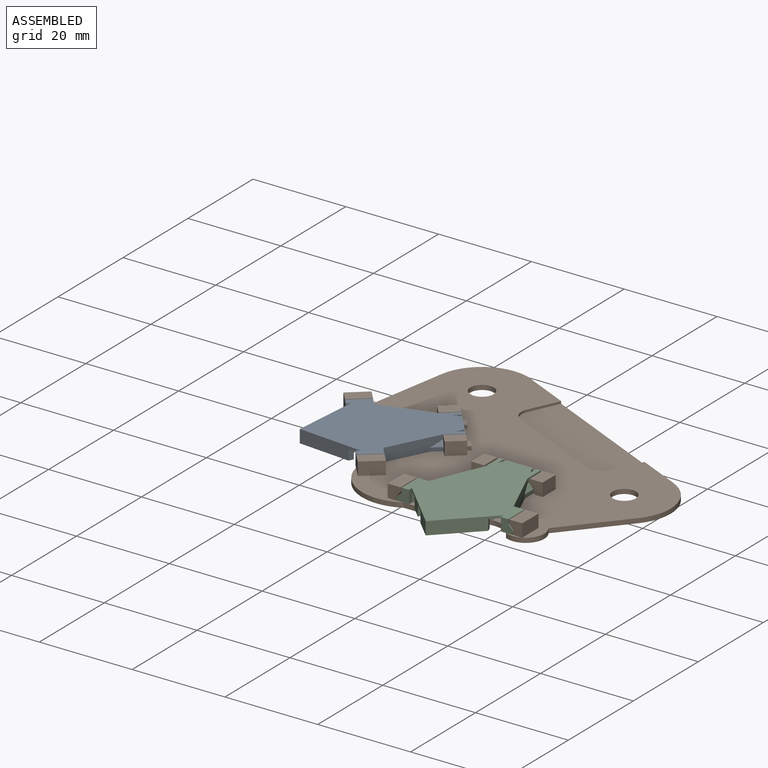
[diagram: assembled view]
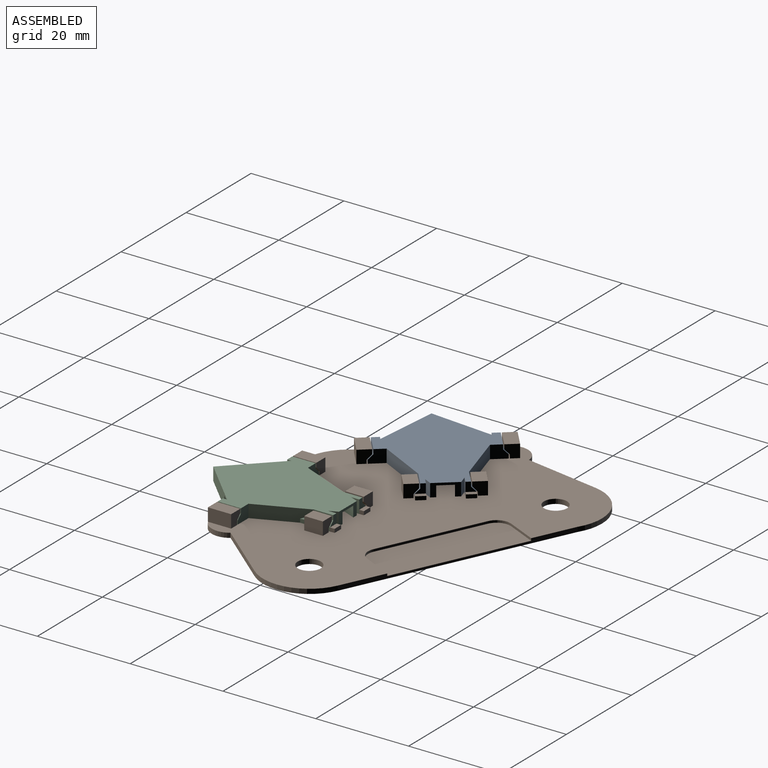
[diagram: assembled view, second angle]
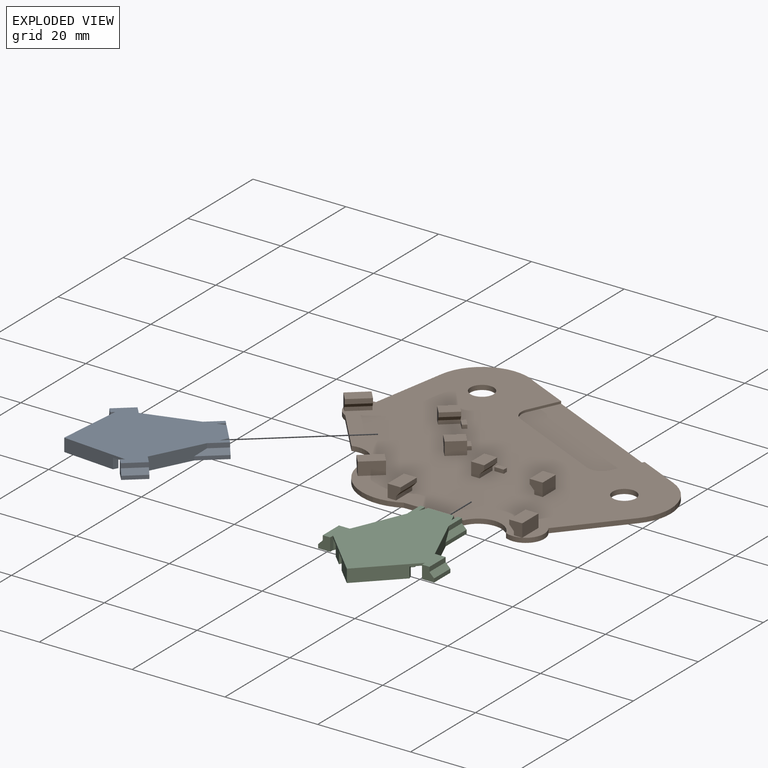
[diagram: exploded view]
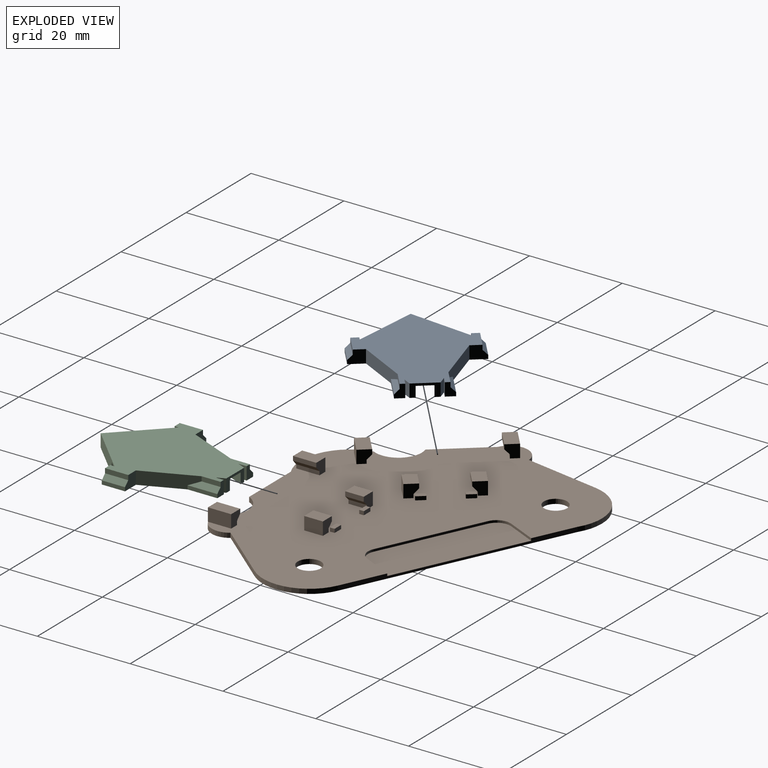
[diagram: exploded view, second angle]
ASSEMBLY  parts=3 mates=2
PART A: 50 faces, bbox 25x29x2.8 mm
  f0: plane 20x10.84mm, normal (0,0,1), area 41.4mm2, adj f2,f3,f4,f7,f8,f28,f31,f32
  f1: plane 2.8x1.76mm, normal (-0.92,0.39,0), area 5.3mm2, adj f8,f12,f13,f45
  f2: plane 10.9x4.66mm, normal (0.92,0.39,0), area 29.9mm2, adj f0,f13,f32,f40,f41,f43
  f3: plane 2.8x1.76mm, normal (0.92,0.39,0), area 5.3mm2, adj f0,f8,f13,f42
  f4: plane 19.15x8.18mm, normal (-0.92,-0.39,0), area 47.9mm2, adj f0,f5,f7,f8
  f5: plane 26.71x19.69mm, normal (0,0,1), area 212.4mm2, adj f4,f6,f7,f8,f14,f15,f16,f17
  f6: plane 9.9x9.9mm, normal (-0.71,-0.71,0), area 33mm2, adj f5,f7,f10,f12,f13,f24,f25,f39
  f7: plane 9.9x9.9mm, normal (0.71,-0.71,0), area 26.8mm2, adj f0,f4,f5,f6,f9,f10,f13,f20
  f8: plane 5.5x2.8mm, normal (0,1,0), area 7.8mm2, adj f0,f1,f3,f4,f5,f12,f13,f24
  f9: plane 17.95x6.69mm, normal (0,0,1), area 42.4mm2, adj f7,f21,f22,f23
  f10: plane 11.69x9.6mm, normal (0,0,1), area 24.3mm2, adj f6,f7,f17,f18,f19,f20,f25
  f11: plane 10.9x4.66mm, normal (-0.92,0.39,0), area 29.9mm2, adj f12,f13,f37,f46,f47,f48
  f12: plane 20x10.84mm, normal (0,0,1), area 41.4mm2, adj f1,f6,f8,f11,f24,f34,f36,f37
  f13: plane 29x23mm, normal (0,0,-1), area 379.6mm2, adj f1,f2,f3,f6,f7,f8,f11,f30
  f14: plane 11.29x4.82mm, normal (-0.92,0.39,0), area 28.2mm2, adj f5,f15,f26,f27
  f15: plane 15.99x2.3mm, normal (1,0,0), area 36.8mm2, adj f5,f14,f16,f27
  f16: plane 4.76x4.76mm, normal (-0.71,-0.71,0), area 15.5mm2, adj f5,f15,f26,f27
  f17: plane 6.21x6.21mm, normal (0.71,0.71,0), area 20.2mm2, adj f5,f10,f18,f25
  f18: cylinder r=1.5mm len=2.56mm, axis (0,0,1), area 8.1mm2, adj f5,f10,f17,f19
  f19: plane 5.81x2.3mm, normal (-1,0,0), area 13.4mm2, adj f5,f10,f18,f20
  f20: plane 5.85x2.5mm, normal (0.92,0.39,0), area 14.6mm2, adj f5,f7,f10,f19
  f21: plane 10.31x4.4mm, normal (-0.92,-0.39,0), area 25.8mm2, adj f5,f7,f9,f22
  f22: plane 7.64x2.3mm, normal (-1,0,0), area 17.6mm2, adj f5,f9,f21,f23
  f23: plane 15.66x6.69mm, normal (0.92,0.39,0), area 39.2mm2, adj f5,f7,f9,f22
  f24: plane 19.15x8.18mm, normal (0.92,-0.39,0), area 47.9mm2, adj f5,f6,f8,f12
  f25: plane 2.3x0.99mm, normal (-0.92,0.39,0), area 2.5mm2, adj f5,f6,f10,f17
  f26: plane 2.3x0.06mm, normal (0.71,-0.71,0), area 0.2mm2, adj f5,f14,f16,f27
  f27: plane 15.99x4.82mm, normal (0,0,1), area 38.2mm2, adj f14,f15,f16,f26
  f28: plane 5x0.8mm, normal (1,0,0), area 4mm2, adj f0,f29,f31,f32
  f29: plane 5x1mm, normal (0.71,0,-0.71), area 7.1mm2, adj f28,f30,f31,f32
  f30: plane 5x1mm, normal (1,0,0), area 5mm2, adj f13,f29,f31,f32
  f31: plane 2.8x2.6mm, normal (0,-1,0), area 5.8mm2, adj f0,f13,f28,f29,f30,f38
  f32: plane 3.34x2.8mm, normal (0,1,0), area 7.9mm2, adj f0,f2,f13,f28,f29,f30
  f33: plane 5x1mm, normal (-0.71,0,-0.71), area 7.1mm2, adj f34,f35,f36,f37
  f34: plane 5x0.8mm, normal (-1,0,0), area 4mm2, adj f12,f33,f36,f37
  f35: plane 5x1mm, normal (-1,0,0), area 5mm2, adj f13,f33,f36,f37
  f36: plane 2.8x2.6mm, normal (0,-1,0), area 5.8mm2, adj f12,f13,f33,f34,f35,f39
  f37: plane 3.34x2.8mm, normal (0,1,0), area 7.9mm2, adj f11,f12,f13,f33,f34,f35
  f38: plane 2.8x0.9mm, normal (-1,0,0), area 2.5mm2, adj f0,f7,f13,f31
  f39: plane 2.8x0.9mm, normal (1,0,0), area 2.5mm2, adj f6,f12,f13,f36
  f40: plane 6.44x1mm, normal (0.71,0,-0.71), area 7.4mm2, adj f2,f41,f43,f44
  f41: plane 4.1x1mm, normal (1,0,0), area 4.1mm2, adj f2,f13,f40,f44
  f42: plane 2.8x1.76mm, normal (-1,0,0), area 4.9mm2, adj f0,f3,f13,f44
  f43: plane 6.44x0.8mm, normal (1,0,0), area 5.2mm2, adj f0,f2,f40,f44
  f44: plane 2.8x2mm, normal (0,1,0), area 4.1mm2, adj f0,f13,f40,f41,f42,f43
  f45: plane 2.8x1.76mm, normal (1,0,0), area 4.9mm2, adj f1,f12,f13,f49
  f46: plane 4.1x1mm, normal (-1,0,0), area 4.1mm2, adj f11,f13,f47,f49
  f47: plane 6.44x1mm, normal (-0.71,0,-0.71), area 7.4mm2, adj f11,f46,f48,f49
  f48: plane 6.44x0.8mm, normal (-1,0,0), area 5.2mm2, adj f11,f12,f47,f49
  f49: plane 2.8x2mm, normal (0,1,0), area 4.1mm2, adj f12,f13,f45,f46,f47,f48
PART B: 100 faces, bbox 71.8x57.5x3.8 mm
  f0: plane 71.82x57.45mm, normal (0,0,1), area 2304.2mm2, adj f1,f3,f4,f5,f7,f8,f9,f10
  f1: plane 0.8x0.77mm, normal (0.64,-0.77,0), area 0.8mm2, adj f0,f2,f4,f5
  f2: plane 2.18x2.05mm, normal (0,0,1), area 2mm2, adj f1,f3,f4,f5
  f3: plane 0.8x0.77mm, normal (-0.64,0.77,0), area 0.8mm2, adj f0,f2,f4,f5
  f4: plane 1.53x1.29mm, normal (0.77,0.64,0), area 1.6mm2, adj f0,f1,f2,f3
  f5: plane 1.53x1.29mm, normal (-0.77,-0.64,0), area 1.6mm2, adj f0,f1,f2,f3
  f6: plane 2x1mm, normal (0,0,1), area 2mm2, adj f7,f8,f9,f10
  f7: plane 1x0.8mm, normal (-1,0,0), area 0.8mm2, adj f0,f6,f9,f10
  f8: plane 1x0.8mm, normal (1,0,0), area 0.8mm2, adj f0,f6,f9,f10
  f9: plane 2x0.8mm, normal (0,1,0), area 1.6mm2, adj f0,f6,f7,f8
  f10: plane 2x0.8mm, normal (0,-1,0), area 1.6mm2, adj f0,f6,f7,f8
  f11: plane 2x1mm, normal (0,0,1), area 2mm2, adj f12,f13,f14,f15
  f12: plane 1x0.8mm, normal (-1,0,0), area 0.8mm2, adj f0,f11,f14,f15
  f13: plane 1x0.8mm, normal (1,0,0), area 0.8mm2, adj f0,f11,f14,f15
  f14: plane 2x0.8mm, normal (0,1,0), area 1.6mm2, adj f0,f11,f12,f13
  f15: plane 2x0.8mm, normal (0,-1,0), area 1.6mm2, adj f0,f11,f12,f13
  f16: plane 0.8x0.77mm, normal (0.64,-0.77,0), area 0.8mm2, adj f0,f17,f19,f20
  f17: plane 2.18x2.05mm, normal (0,0,1), area 2mm2, adj f16,f18,f19,f20
  f18: plane 0.8x0.77mm, normal (-0.64,0.77,0), area 0.8mm2, adj f0,f17,f19,f20
  f19: plane 1.53x1.29mm, normal (0.77,0.64,0), area 1.6mm2, adj f0,f16,f17,f18
  f20: plane 1.53x1.29mm, normal (-0.77,-0.64,0), area 1.6mm2, adj f0,f16,f17,f18
  f21: cylinder r=4mm len=6.32mm, axis (0,0,1), area 10.5mm2, adj f0,f22,f34,f35,f51
  f22: plane 12.63x10.65mm, normal (0.76,-0.64,0), area 16.5mm2, adj f0,f21,f23,f35
  f23: cylinder r=10mm len=15.52mm, axis (0,0,1), area 18.4mm2, adj f0,f22,f24,f35
  f24: plane 44.43x20.62mm, normal (0.42,0.91,0), area 34.3mm2, adj f0,f23,f25,f35,f94,f98,f99
  f25: cylinder r=10mm len=15.14mm, axis (0,0,1), area 19.6mm2, adj f0,f24,f26,f35
  f26: plane 16.26x2.79mm, normal (-0.99,0.17,0), area 16.5mm2, adj f0,f25,f27,f35
  f27: cylinder r=4mm len=7.63mm, axis (0,0,1), area 10.5mm2, adj f0,f26,f28,f35,f90
  f28: plane 9.83x8.25mm, normal (-0.77,-0.64,0), area 12.8mm2, adj f0,f27,f29,f35
  f29: cylinder r=5mm len=7.23mm, axis (0,0,1), area 11.6mm2, adj f0,f28,f30,f35
  f30: cylinder r=10.56mm len=15.32mm, axis (0,0,1), area 19.6mm2, adj f0,f29,f31,f35
  f31: plane 12.84x1mm, normal (0,-1,0), area 12.8mm2, adj f0,f30,f34,f35
  f32: cylinder r=2.5mm len=5mm, axis (0,0,1), area 15.7mm2, adj f0,f35
  f33: cylinder r=2.5mm len=5mm, axis (0,0,1), area 15.7mm2, adj f0,f35
  f34: cylinder r=5mm len=9.17mm, axis (0,0,1), area 11.6mm2, adj f0,f21,f31,f35
  f35: plane 71.82x57.45mm, normal (0,0,-1), area 2666.8mm2, adj f21,f22,f23,f24,f25,f26,f27,f28
  f36: plane 4x0.8mm, normal (-1,0,0), area 3.2mm2, adj f0,f40,f41,f42
  f37: plane 4x2.8mm, normal (1,0,0), area 11.2mm2, adj f0,f38,f41,f42
  f38: plane 4x2.8mm, normal (0,0,1), area 11.2mm2, adj f37,f39,f41,f42
  f39: plane 4x1mm, normal (-1,0,0), area 4mm2, adj f38,f40,f41,f42
  f40: plane 4x1mm, normal (-0.71,0,-0.71), area 5.7mm2, adj f36,f39,f41,f42
  f41: plane 2.8x2.8mm, normal (0,-1,0), area 6.5mm2, adj f0,f36,f37,f38,f39,f40
  f42: plane 2.8x2.8mm, normal (0,1,0), area 6.5mm2, adj f0,f36,f37,f38,f39,f40
  f43: plane 4x1mm, normal (0.71,0,-0.71), area 5.7mm2, adj f44,f47,f48,f49
  f44: plane 4x1mm, normal (1,0,0), area 4mm2, adj f43,f45,f48,f49
  f45: plane 4x2.8mm, normal (0,0,1), area 11.2mm2, adj f44,f46,f48,f49
  f46: plane 4x2.8mm, normal (-1,0,0), area 11.2mm2, adj f0,f45,f48,f49
  f47: plane 4x0.8mm, normal (1,0,0), area 3.2mm2, adj f0,f43,f48,f49
  f48: plane 2.8x2.8mm, normal (0,-1,0), area 6.5mm2, adj f0,f43,f44,f45,f46,f47
  f49: plane 2.8x2.8mm, normal (0,1,0), area 6.5mm2, adj f0,f43,f44,f45,f46,f47
  f50: plane 5x0.8mm, normal (-1,0,0), area 4mm2, adj f0,f55,f56,f57
  f51: plane 0.04x0.02mm, normal (0,0,-1), area 0mm2, adj f21,f52,f56
  f52: plane 5x2.8mm, normal (1,0,0), area 14mm2, adj f0,f51,f53,f56,f57
  f53: plane 5x2.8mm, normal (0,0,1), area 14mm2, adj f52,f54,f56,f57
  f54: plane 5x0.92mm, normal (-1,0,0), area 4.6mm2, adj f53,f55,f56,f57
  f55: plane 5x1.08mm, normal (-0.73,0,-0.68), area 7.4mm2, adj f50,f54,f56,f57
  f56: plane 2.8x2.8mm, normal (0,-1,0), area 6.5mm2, adj f0,f50,f51,f52,f53,f54,f55
  f57: plane 2.8x2.8mm, normal (0,1,0), area 6.5mm2, adj f0,f50,f52,f53,f54,f55
  f58: plane 5x0.92mm, normal (1,0,0), area 4.6mm2, adj f59,f62,f63,f64
  f59: plane 5x2.8mm, normal (0,0,1), area 14mm2, adj f58,f60,f63,f64
  f60: plane 5x2.8mm, normal (-1,0,0), area 14mm2, adj f0,f59,f63,f64
  f61: plane 5x0.8mm, normal (1,0,0), area 4mm2, adj f0,f62,f63,f64
  f62: plane 5x1.08mm, normal (0.73,0,-0.68), area 7.4mm2, adj f58,f61,f63,f64
  f63: plane 2.8x2.8mm, normal (0,-1,0), area 6.5mm2, adj f0,f58,f59,f60,f61,f62
  f64: plane 2.8x2.8mm, normal (0,1,0), area 6.5mm2, adj f0,f58,f59,f60,f61,f62
  f65: plane 3.06x2.57mm, normal (-0.64,0.77,0), area 3.2mm2, adj f0,f69,f70,f71
  f66: plane 3.06x2.8mm, normal (0.64,-0.77,0), area 11.2mm2, adj f0,f67,f70,f71
  f67: plane 4.86x4.72mm, normal (0,0,1), area 11.2mm2, adj f66,f68,f70,f71
  f68: plane 3.06x2.57mm, normal (-0.64,0.77,0), area 3.7mm2, adj f67,f69,f70,f71
  f69: plane 3.71x3.34mm, normal (-0.47,0.56,-0.68), area 5.9mm2, adj f65,f68,f70,f71
  f70: plane 2.8x2.15mm, normal (-0.77,-0.64,0), area 6.5mm2, adj f0,f65,f66,f67,f68,f69
  f71: plane 2.8x2.15mm, normal (0.77,0.64,0), area 6.5mm2, adj f0,f65,f66,f67,f68,f69
  f72: plane 3.06x2.57mm, normal (0.64,-0.77,0), area 3.7mm2, adj f73,f76,f77,f78
  f73: plane 4.86x4.72mm, normal (0,0,1), area 11.2mm2, adj f72,f74,f77,f78
  f74: plane 3.06x2.8mm, normal (-0.64,0.77,0), area 11.2mm2, adj f0,f73,f77,f78
  f75: plane 3.06x2.57mm, normal (0.64,-0.77,0), area 3.2mm2, adj f0,f76,f77,f78
  f76: plane 3.71x3.34mm, normal (0.47,-0.56,-0.68), area 5.9mm2, adj f72,f75,f77,f78
  f77: plane 2.8x2.15mm, normal (-0.77,-0.64,0), area 6.5mm2, adj f0,f72,f73,f74,f75,f76
  f78: plane 2.8x2.15mm, normal (0.77,0.64,0), area 6.5mm2, adj f0,f72,f73,f74,f75,f76
  f79: plane 3.83x3.21mm, normal (-0.64,0.77,0), area 4mm2, adj f0,f83,f84,f85
  f80: plane 3.83x3.21mm, normal (0.64,-0.77,0), area 14mm2, adj f0,f81,f84,f85
  f81: plane 5.63x5.36mm, normal (0,0,1), area 14mm2, adj f80,f82,f84,f85
  f82: plane 3.83x3.21mm, normal (-0.64,0.77,0), area 5mm2, adj f81,f83,f84,f85
  f83: plane 4.47x3.98mm, normal (-0.45,0.54,-0.71), area 7.1mm2, adj f79,f82,f84,f85
  f84: plane 2.8x2.15mm, normal (-0.77,-0.64,0), area 6.5mm2, adj f0,f79,f80,f81,f82,f83
  f85: plane 2.8x2.15mm, normal (0.77,0.64,0), area 6.5mm2, adj f0,f79,f80,f81,f82,f83
  f86: plane 4.47x3.98mm, normal (0.45,-0.54,-0.71), area 7.1mm2, adj f87,f91,f92,f93
  f87: plane 3.83x3.21mm, normal (0.64,-0.77,0), area 5mm2, adj f86,f88,f92,f93
  f88: plane 5.63x5.36mm, normal (0,0,1), area 14mm2, adj f87,f89,f92,f93
  f89: plane 3.83x3.21mm, normal (-0.64,0.77,0), area 14mm2, adj f0,f88,f90,f92,f93
  f90: plane 0.02x0.01mm, normal (0,0,-1), area 0mm2, adj f27,f89,f92
  f91: plane 3.83x3.21mm, normal (0.64,-0.77,0), area 4mm2, adj f0,f86,f92,f93
  f92: plane 2.8x2.15mm, normal (-0.77,-0.64,0), area 6.5mm2, adj f0,f86,f87,f88,f89,f90,f91
  f93: plane 2.8x2.15mm, normal (0.77,0.64,0), area 6.5mm2, adj f0,f86,f87,f88,f89,f91
  f94: plane 6.35x2.95mm, normal (0.91,-0.42,0), area 3.5mm2, adj f0,f24,f95,f99
  f95: cylinder r=3mm len=3.98mm, axis (0,0,1), area 2.4mm2, adj f0,f94,f96,f99
  f96: plane 21.19x9.84mm, normal (0.42,0.91,0), area 11.7mm2, adj f0,f95,f97,f99
  f97: cylinder r=3mm len=3.98mm, axis (0,0,1), area 2.4mm2, adj f0,f96,f98,f99
  f98: plane 6.35x2.95mm, normal (-0.91,0.42,0), area 3.5mm2, adj f0,f24,f97,f99
  f99: plane 29.86x20.45mm, normal (0,0,1), area 289.8mm2, adj f24,f94,f95,f96,f97,f98
PART C: same geometry as A
PLACE A rot(axis=(-0.42,-0.91,0),180deg) t=(-46.91,-29.95,8.81)mm
PLACE B t=(-17.63,-19.74,9.01)mm
PLACE C rot(axis=(0,1,0),180deg) t=(-6.63,-48.74,8.81)mm
MATE fastened A.f49 <-> B.f20  axis (0.77,0.64,0) through (-21.16,-15.53,9.01)mm
MATE fastened C.f49 <-> B.f15  axis (0,1,0) through (-1.13,-19.74,9.01)mm
